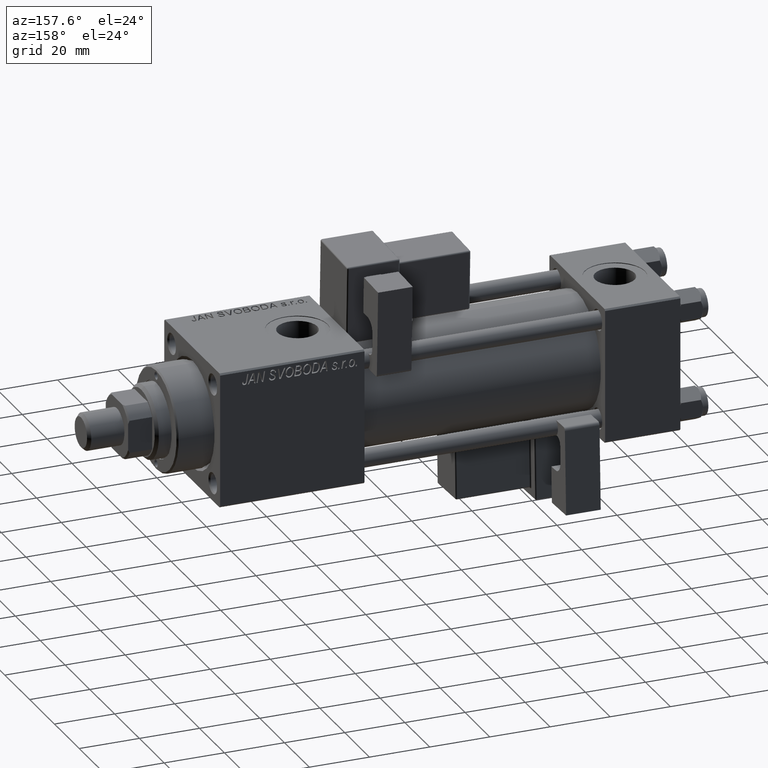
[diagram: clean part render]
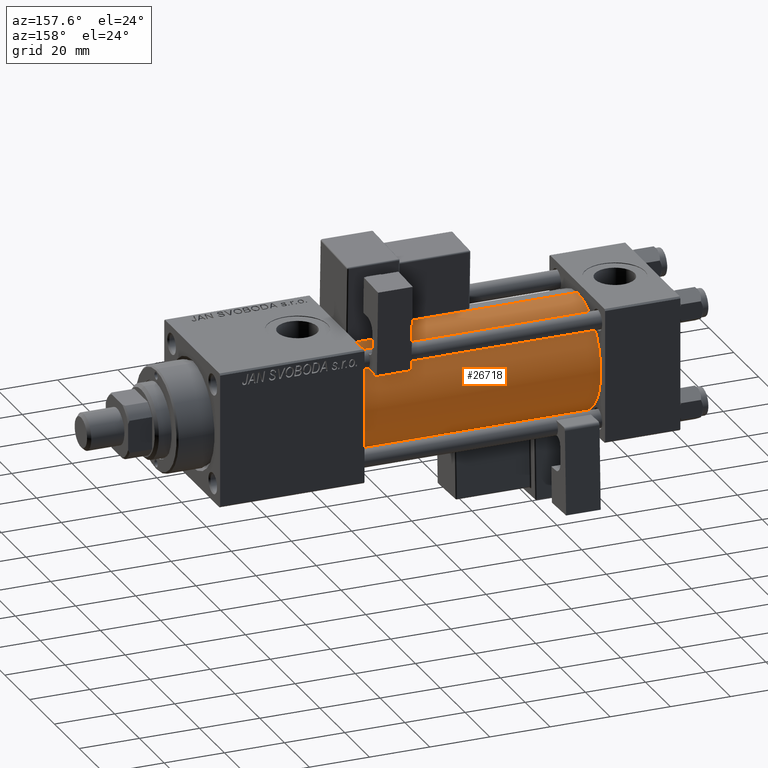
[diagram: same view with one face highlighted and labeled with its STEP entity id]
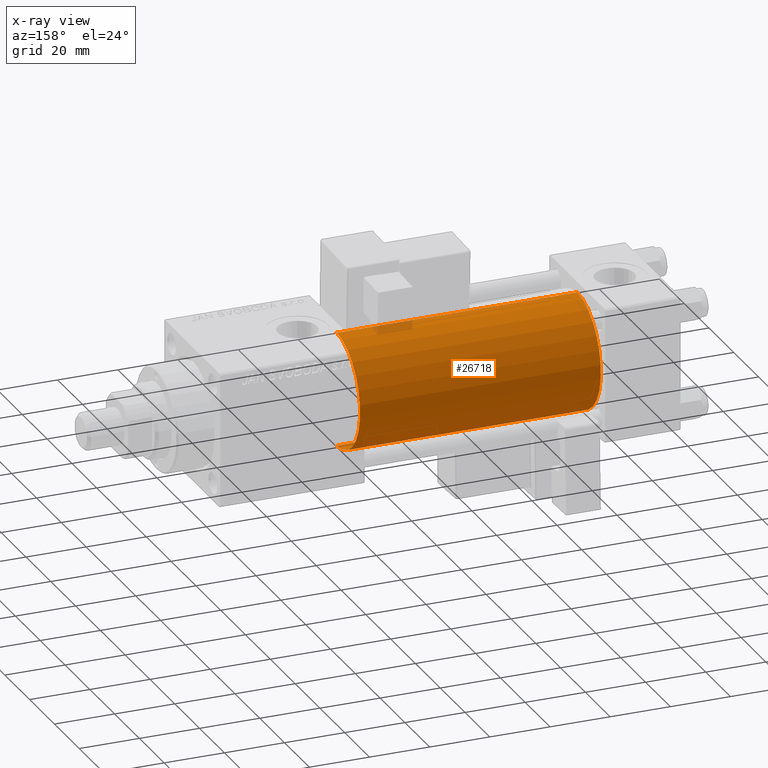
[diagram: x-ray of the same camera — body ghosted, the highlighted face saturated]
A machine part, auxiliary view. The second image highlights one B-rep face of the part: STEP entity #26718.
The next image is the same camera in x-ray: the body ghosted, the highlighted face saturated — about 1% of this face is hidden behind the body in this view.
In plain terms, the highlighted cylindrical surface (partial cylindrical patch) has radius 19 mm, axis along (-1, -0, -0).
Its self-contained STEP definition (entity closure, byte-faithful):
#441 = CARTESIAN_POINT ( 'NONE',  ( 105.0000000000000142, -2.602085213965210642E-15, 19.00000000000000000 ) ) ;
#940 = CYLINDRICAL_SURFACE ( 'NONE', #11784, 19.00000000000000000 ) ;
#1413 = ORIENTED_EDGE ( 'NONE', *, *, #28780, .F. ) ;
#2869 = AXIS2_PLACEMENT_3D ( 'NONE', #22498, #39081, #30380 ) ;
#3720 = CIRCLE ( 'NONE', #2869, 19.00000000000000000 ) ;
#4742 = CIRCLE ( 'NONE', #27332, 19.00000000000000000 ) ;
#4936 = VECTOR ( 'NONE', #17599, 1000.000000000000000 ) ;
#5170 = EDGE_CURVE ( 'NONE', #32679, #10925, #29568, .T. ) ;
#5286 = CARTESIAN_POINT ( 'NONE',  ( 105.0000000000000142, -2.602085213965210642E-15, 0.000000000000000000 ) ) ;
#6168 = VERTEX_POINT ( 'NONE', #19498 ) ;
#6824 = CARTESIAN_POINT ( 'NONE',  ( 24.99999999999999289, -2.602085213965210642E-15, 19.00000000000000000 ) ) ;
#9104 = CARTESIAN_POINT ( 'NONE',  ( 24.99999999999999289, -2.602085213965210642E-15, 0.000000000000000000 ) ) ;
#9644 = DIRECTION ( 'NONE',  ( 0.000000000000000000, 0.000000000000000000, 1.000000000000000000 ) ) ;
#10925 = VERTEX_POINT ( 'NONE', #24639 ) ;
#11784 = AXIS2_PLACEMENT_3D ( 'NONE', #5286, #51771, #47164 ) ;
#13187 = ORIENTED_EDGE ( 'NONE', *, *, #5170, .T. ) ;
#17328 = CARTESIAN_POINT ( 'NONE',  ( 105.0000000000000142, -2.752562955852396712E-16, -19.00000000000000000 ) ) ;
#17599 = DIRECTION ( 'NONE',  ( -1.000000000000000000, -0.000000000000000000, -0.000000000000000000 ) ) ;
#17992 = EDGE_CURVE ( 'NONE', #32679, #6168, #3720, .T. ) ;
#19498 = CARTESIAN_POINT ( 'NONE',  ( 105.0000000000000142, -2.602085213965210642E-15, 19.00000000000000000 ) ) ;
#21768 = EDGE_CURVE ( 'NONE', #10925, #39577, #4742, .T. ) ;
#22188 = CARTESIAN_POINT ( 'NONE',  ( 105.0000000000000142, -2.752562955852396712E-16, -19.00000000000000000 ) ) ;
#22498 = CARTESIAN_POINT ( 'NONE',  ( 105.0000000000000142, -2.602085213965210642E-15, 0.000000000000000000 ) ) ;
#24639 = CARTESIAN_POINT ( 'NONE',  ( 24.99999999999999289, -2.752562955852396712E-16, -19.00000000000000000 ) ) ;
#25455 = DIRECTION ( 'NONE',  ( 1.000000000000000000, -0.000000000000000000, 0.000000000000000000 ) ) ;
#26718 = ADVANCED_FACE ( 'NONE', ( #34133 ), #940, .T. ) ;
#27332 = AXIS2_PLACEMENT_3D ( 'NONE', #9104, #25455, #9644 ) ;
#28780 = EDGE_CURVE ( 'NONE', #6168, #39577, #37711, .T. ) ;
#29568 = LINE ( 'NONE', #17328, #4936 ) ;
#30323 = ORIENTED_EDGE ( 'NONE', *, *, #17992, .F. ) ;
#30380 = DIRECTION ( 'NONE',  ( 0.000000000000000000, 0.000000000000000000, -1.000000000000000000 ) ) ;
#32679 = VERTEX_POINT ( 'NONE', #22188 ) ;
#34133 = FACE_OUTER_BOUND ( 'NONE', #53153, .T. ) ;
#34377 = VECTOR ( 'NONE', #46129, 1000.000000000000000 ) ;
#37711 = LINE ( 'NONE', #441, #34377 ) ;
#39081 = DIRECTION ( 'NONE',  ( 1.000000000000000000, 0.000000000000000000, 0.000000000000000000 ) ) ;
#39577 = VERTEX_POINT ( 'NONE', #6824 ) ;
#40285 = ORIENTED_EDGE ( 'NONE', *, *, #21768, .T. ) ;
#46129 = DIRECTION ( 'NONE',  ( -1.000000000000000000, -0.000000000000000000, -0.000000000000000000 ) ) ;
#47164 = DIRECTION ( 'NONE',  ( 0.000000000000000000, 0.000000000000000000, 1.000000000000000000 ) ) ;
#51771 = DIRECTION ( 'NONE',  ( -1.000000000000000000, -0.000000000000000000, -0.000000000000000000 ) ) ;
#53153 = EDGE_LOOP ( 'NONE', ( #30323, #13187, #40285, #1413 ) ) ;